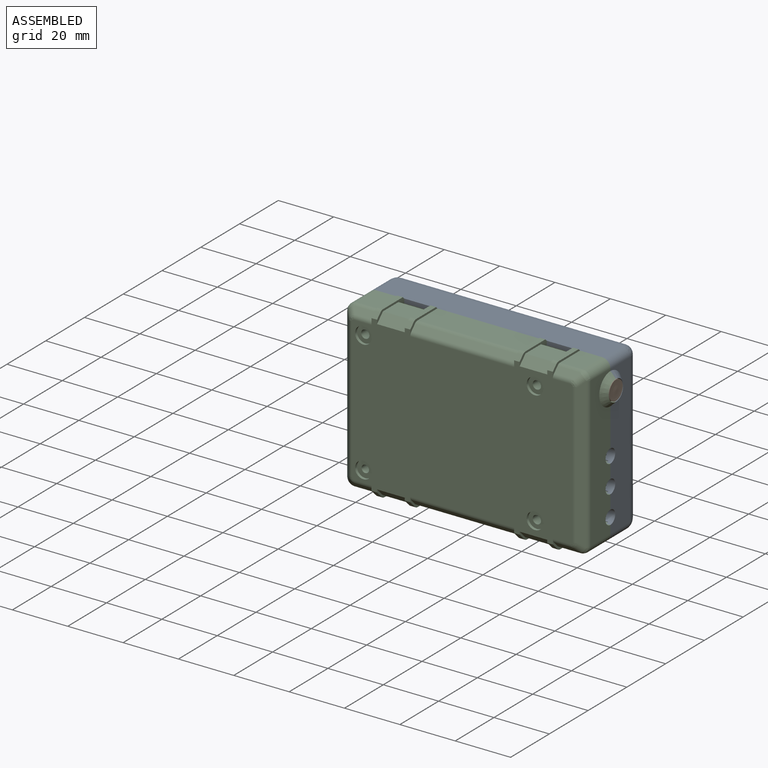
[diagram: assembled view]
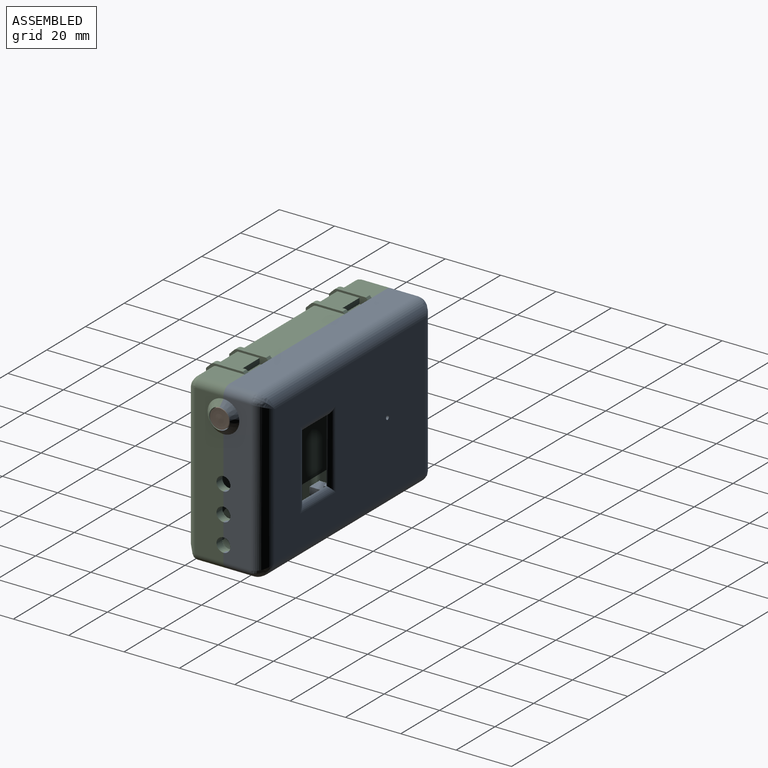
[diagram: assembled view, second angle]
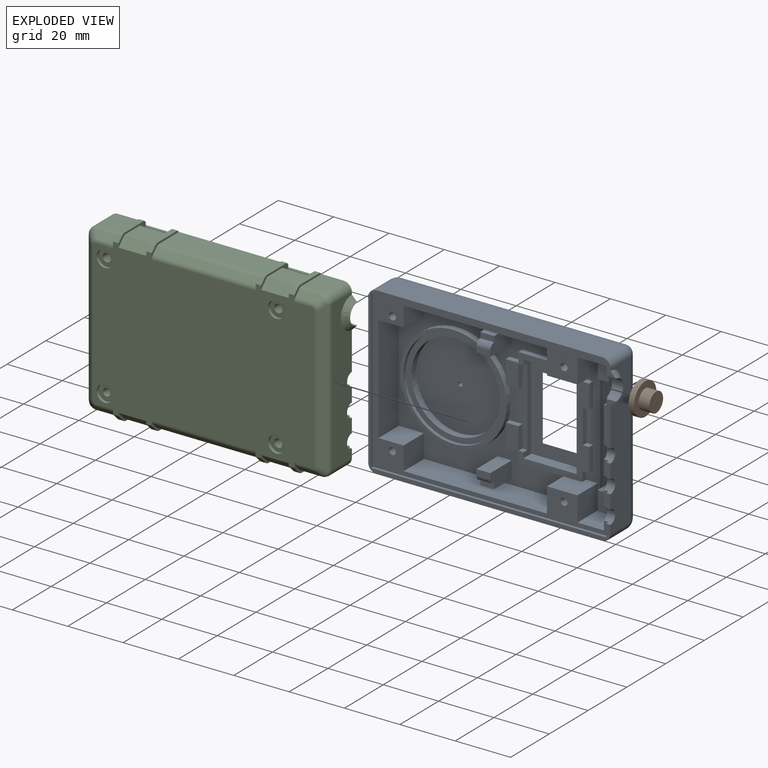
[diagram: exploded view]
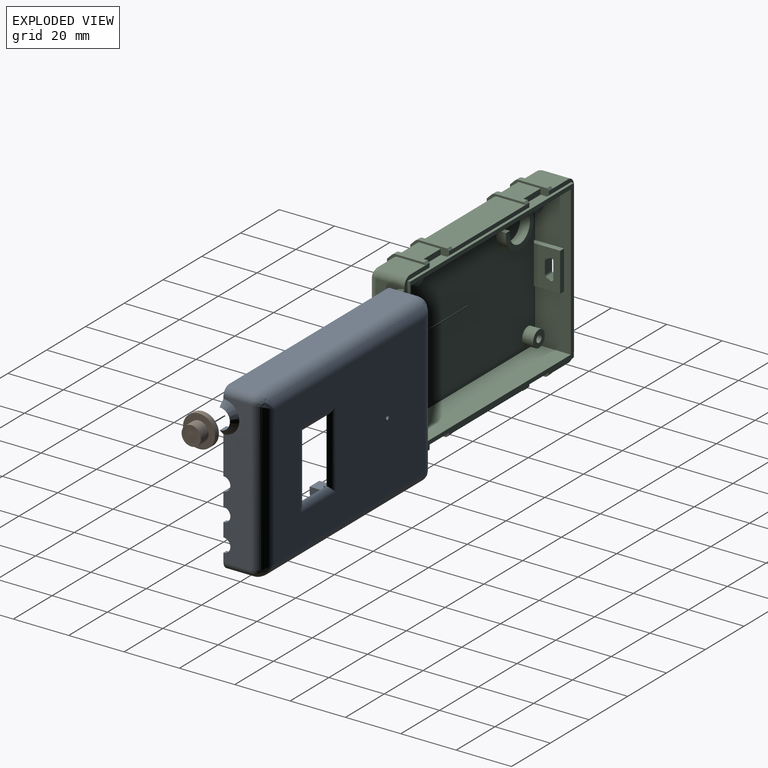
[diagram: exploded view, second angle]
ASSEMBLY  parts=3 mates=3
PART A: 141 faces, bbox 89.5x15x60 mm
  f0: cylinder r=0.75mm len=2mm, axis (0,-1,0), area 9.4mm2, adj f17,f140
  f1: plane 54x13.84mm, normal (0,-1,0), area 281.9mm2, adj f8,f9,f11,f12,f19,f20,f27,f30
  f2: plane 51.8x10.5mm, normal (0,0,1), area 543.9mm2, adj f6,f18,f29,f84
  f3: plane 51.8x10.5mm, normal (0,0,-1), area 543.9mm2, adj f6,f18,f28,f85
  f4: plane 9x5mm, normal (0,0,-1), area 45mm2, adj f6,f70,f71,f125
  f5: plane 9x5mm, normal (0,0,1), area 45mm2, adj f6,f74,f75,f124
  f6: plane 60.9x54mm, normal (0,-1,0), area 1306.7mm2, adj f2,f3,f4,f5,f7,f10,f14,f25
  f7: plane 8x2mm, normal (1,0,0), area 16mm2, adj f6,f90,f116,f134
  f8: plane 2.25x2mm, normal (0,0,-1), area 4.5mm2, adj f1,f89,f90,f130
  f9: plane 2.25x2mm, normal (0,0,1), area 4.5mm2, adj f1,f90,f92,f130
  f10: plane 38.5x10.5mm, normal (1,0,0), area 404.2mm2, adj f6,f18,f25,f26
  f11: plane 10.5x9.6mm, normal (0,0,1), area 100.8mm2, adj f1,f18,f34,f101
  f12: plane 10.5x9.6mm, normal (0,0,-1), area 100.8mm2, adj f1,f18,f34,f102
  f13: cylinder r=18mm len=36mm, axis (0,1,0), area 135.7mm2, adj f122,f123
  f14: cylinder r=19.25mm len=38.5mm, axis (0,1,0), area 266.1mm2, adj f6,f123
  f15: cylinder r=16mm len=32mm, axis (0,1,0), area 251.3mm2, adj f122,f140
  f16: plane 89.5x60mm, normal (0,-1,0), area 326.9mm2, adj f36,f37,f39,f52,f53,f56,f57,f61
  f17: plane 77.5x50mm, normal (0,1,0), area 3356.7mm2, adj f0,f108,f111,f112,f115,f118,f119,f120
  f18: plane 85x57mm, normal (0,-1,0), area 686.6mm2, adj f2,f3,f10,f11,f12,f19,f20,f25
  f19: plane 11x10.5mm, normal (0,0,-1), area 101.5mm2, adj f1,f18,f28,f90,f102,f131
  f20: plane 11x10.5mm, normal (0,0,1), area 102mm2, adj f1,f18,f29,f90,f101,f128
  f21: plane 5x2mm, normal (0,-1,0), area 10mm2, adj f72,f73,f74,f75
  f22: plane 5x2mm, normal (0,-1,0), area 10mm2, adj f68,f69,f70,f71
  f23: plane 32.22x20.2mm, normal (0,-1,0), area 349.4mm2, adj f24,f31,f86,f104,f118,f119,f120,f121
  f24: plane 20.2x4mm, normal (0,0,-1), area 78.3mm2, adj f23,f86,f87,f90,f103,f104
  f25: plane 10.5x9.1mm, normal (0,0,-1), area 95.6mm2, adj f6,f10,f18,f85
  f26: plane 10.5x9.1mm, normal (0,0,1), area 95.6mm2, adj f6,f10,f18,f84
  f27: plane 4x3.8mm, normal (0,0,-1), area 15.2mm2, adj f1,f46,f47,f48
  f28: plane 10.5x8.9mm, normal (-1,0,0), area 93.4mm2, adj f3,f6,f18,f19,f132
  f29: plane 10.5x8.9mm, normal (-1,0,0), area 93.4mm2, adj f2,f6,f18,f20,f127
  f30: plane 4x3.8mm, normal (0,0,1), area 15.2mm2, adj f1,f46,f50,f51
  f31: plane 20.2x4mm, normal (0,0,1), area 78.3mm2, adj f23,f86,f87,f90,f103,f104
  f32: plane 52x1.3mm, normal (1,0,0), area 67.6mm2, adj f1,f58,f138,f139
  f33: plane 16.09x1.5mm, normal (0,-1,0), area 21.4mm2, adj f34,f54,f60,f62,f66,f67
  f34: plane 54x10.5mm, normal (-1,0,0), area 431.2mm2, adj f1,f11,f12,f18,f33,f38,f44,f59
  f35: plane 15.75x3.5mm, normal (0,-1,0), area 25.6mm2, adj f37,f54,f60,f62,f63
  f36: plane 4.39x1mm, normal (-1,0,0), area 4.3mm2, adj f16,f18,f53,f62
  f37: plane 54x10mm, normal (1,0,0), area 458.6mm2, adj f16,f35,f42,f55,f59,f60,f61,f63
  f38: plane 5.42x1.5mm, normal (0,-1,0), area 8.1mm2, adj f34,f40,f59,f60
  f39: plane 4.71x1mm, normal (-1,0,0), area 4.6mm2, adj f16,f18,f52,f61
  f40: plane 5.42x1mm, normal (-1,0,0), area 5.1mm2, adj f38,f42,f59,f60
  f41: plane 5.42x1mm, normal (-1,0,0), area 5.1mm2, adj f44,f55,f59,f61
  f42: plane 5x1.5mm, normal (0,-1,0), area 7.5mm2, adj f37,f40,f59,f60
  f43: plane 50x4.8mm, normal (0,-1,0), area 187.6mm2, adj f45,f46,f47,f49,f50,f135,f136,f137
  f44: plane 5.42x1.5mm, normal (0,-1,0), area 8.1mm2, adj f34,f41,f59,f61
  f45: plane 4.5x3.8mm, normal (0,0,1), area 17.1mm2, adj f43,f46,f47,f48
  f46: plane 52x5.3mm, normal (-1,0,0), area 104.7mm2, adj f1,f27,f30,f43,f45,f48,f49,f51
  f47: plane 6.9x4.5mm, normal (1,0,0), area 31mm2, adj f27,f43,f45,f48,f137
  f48: plane 6.9x3.8mm, normal (0,-1,0), area 26.2mm2, adj f27,f45,f46,f47
  f49: plane 4.5x3.8mm, normal (0,0,-1), area 17.1mm2, adj f43,f46,f50,f51
  f50: plane 6.9x4.5mm, normal (1,0,0), area 31mm2, adj f30,f43,f49,f51,f136
  f51: plane 6.9x3.8mm, normal (0,-1,0), area 26.2mm2, adj f30,f46,f49,f50
  f52: plane 85x1mm, normal (0,0,1), area 85mm2, adj f16,f18,f39,f98
  f53: plane 85x1mm, normal (0,0,-1), area 85mm2, adj f16,f18,f36,f98
  f54: plane 16.09x1mm, normal (-1,0,0), area 15.9mm2, adj f33,f35,f60,f62
  f55: plane 5x1.5mm, normal (0,-1,0), area 7.5mm2, adj f37,f41,f59,f61
  f56: plane 81.5x10mm, normal (0,0,-1), area 815mm2, adj f16,f100,f106,f112
  f57: plane 81.5x10mm, normal (0,0,1), area 815mm2, adj f16,f99,f107,f111
  f58: plane 52x2mm, normal (0,-1,0), area 104mm2, adj f32,f46,f138,f139
  f59: cylinder r=2.5mm len=5mm, axis (1,0,0), area 20.5mm2, adj f34,f37,f38,f40,f41,f42,f44,f55
  f60: cylinder r=2.5mm len=5mm, axis (1,0,0), area 20.5mm2, adj f33,f34,f35,f37,f38,f40,f42,f54
  f61: cylinder r=2.5mm len=5mm, axis (1,0,0), area 20.5mm2, adj f16,f18,f34,f37,f39,f41,f44,f55
  f62: cylinder r=3.75mm len=7.5mm, axis (1,0,0), area 46.1mm2, adj f16,f18,f33,f35,f36,f54,f63,f67
  f63: cone r=3.75mm half-angle=45deg, axis (-1,0,0), area 42.2mm2, adj f16,f35,f37,f62
  f64: plane 9.5x1mm, normal (0,0,-1), area 9.5mm2, adj f18,f34,f65,f67
  f65: plane 12.73x1mm, normal (0,-1,0), area 12.7mm2, adj f34,f64,f66,f67
  f66: plane 9.5x1mm, normal (0,0,1), area 9.5mm2, adj f33,f34,f65,f67
  f67: plane 12.73x9.5mm, normal (-1,0,0), area 106.2mm2, adj f18,f33,f62,f64,f65,f66
  f68: cylinder r=2mm len=5mm, axis (-1,0,0), area 15.7mm2, adj f22,f70,f71,f125
  f69: plane 11x5mm, normal (0,0,1), area 55mm2, adj f6,f22,f70,f71
  f70: plane 11x6mm, normal (1,0,0), area 61.1mm2, adj f4,f6,f22,f68,f69,f125
  f71: plane 11x6mm, normal (-1,0,0), area 61.1mm2, adj f4,f6,f22,f68,f69,f125
  f72: cylinder r=2mm len=5mm, axis (1,0,0), area 15.7mm2, adj f21,f74,f75,f124
  f73: plane 11x5mm, normal (0,0,-1), area 55mm2, adj f6,f21,f74,f75
  f74: plane 11x6mm, normal (-1,0,0), area 61.1mm2, adj f5,f6,f21,f72,f73,f124
  f75: plane 11x6mm, normal (1,0,0), area 61.1mm2, adj f5,f6,f21,f72,f73,f124
  f76: plane 2.5x2.5mm, normal (0,-1,0), area 4.9mm2, adj f77
  f77: cylinder r=1.25mm len=11mm, axis (0,1,0), area 86.4mm2, adj f18,f76
  f78: plane 2.5x2.5mm, normal (0,-1,0), area 4.9mm2, adj f79
  f79: cylinder r=1.25mm len=11mm, axis (0,1,0), area 86.4mm2, adj f18,f78
  f80: plane 2.5x2.5mm, normal (0,-1,0), area 4.9mm2, adj f81
  f81: cylinder r=1.25mm len=11mm, axis (0,1,0), area 86.4mm2, adj f18,f80
  f82: plane 2.5x2.5mm, normal (0,-1,0), area 4.9mm2, adj f83
  f83: cylinder r=1.25mm len=11mm, axis (0,1,0), area 86.4mm2, adj f18,f82
  f84: plane 10.5x8.4mm, normal (1,0,0), area 88.2mm2, adj f2,f6,f18,f26
  f85: plane 10.5x7.1mm, normal (1,0,0), area 74.5mm2, adj f3,f6,f18,f25
  f86: plane 32.22x4mm, normal (1,0,0), area 72.4mm2, adj f6,f23,f24,f31,f90,f129,f134
  f87: plane 32.22x2.5mm, normal (-1,0,0), area 80.5mm2, adj f24,f31,f90,f103
  f88: plane 2.27x2mm, normal (0,0,1), area 4.5mm2, adj f1,f89,f90,f131
  f89: plane 8.5x2mm, normal (1,0,0), area 17mm2, adj f1,f8,f88,f90
  f90: plane 36.31x30.11mm, normal (0,-1,0), area 288.7mm2, adj f7,f8,f9,f19,f20,f24,f31,f86
  f91: plane 2.48x2mm, normal (0,0,-1), area 5mm2, adj f1,f90,f92,f128
  f92: plane 8.5x2mm, normal (1,0,0), area 17mm2, adj f1,f9,f90,f91
  f93: plane 4.61x2mm, normal (0,0,1), area 9.2mm2, adj f6,f90,f94,f133
  f94: plane 8.5x2mm, normal (-1,0,0), area 17mm2, adj f6,f90,f93,f116
  f95: plane 4.61x2mm, normal (0,0,-1), area 9.2mm2, adj f6,f90,f97,f126
  f96: plane 8x2mm, normal (1,0,0), area 16mm2, adj f6,f90,f117,f129
  f97: plane 8.5x2mm, normal (-1,0,0), area 17mm2, adj f6,f90,f95,f117
  f98: plane 57x1mm, normal (1,0,0), area 57mm2, adj f16,f18,f52,f53
  f99: cylinder r=3mm len=10mm, axis (0,1,0), area 47.1mm2, adj f16,f37,f57,f113
  f100: cylinder r=3mm len=10mm, axis (0,-1,0), area 47.1mm2, adj f16,f37,f56,f114
  f101: plane 10.5x8.9mm, normal (1,0,0), area 93.4mm2, adj f1,f11,f18,f20
  f102: plane 10.5x8.9mm, normal (1,0,0), area 93.4mm2, adj f1,f12,f18,f19
  f103: plane 32.22x1mm, normal (0,1,0), area 32.2mm2, adj f24,f31,f87,f104
  f104: plane 32.22x1.5mm, normal (-1,0,0), area 48.3mm2, adj f23,f24,f31,f103
  f105: plane 54x10mm, normal (-1,0,0), area 540mm2, adj f16,f106,f107,f108
  f106: cylinder r=3mm len=10mm, axis (0,1,0), area 47.1mm2, adj f16,f56,f105,f110
  f107: cylinder r=3mm len=10mm, axis (0,-1,0), area 47.1mm2, adj f16,f57,f105,f109
  f108: cylinder r=5mm len=54mm, axis (0,0,-1), area 412.7mm2, adj f17,f105,f109,f110
  f109: bspline ~6.03x5mm, area 24.5mm2, adj f107,f108,f111
  f110: bspline ~6.03x5mm, area 24.5mm2, adj f106,f108,f112
  f111: cylinder r=5mm len=81.5mm, axis (-1,0,0), area 628.7mm2, adj f17,f57,f109,f113
  f112: cylinder r=5mm len=81.5mm, axis (1,0,0), area 628.7mm2, adj f17,f56,f110,f114
  f113: bspline ~6.03x5mm, area 24.5mm2, adj f99,f111,f115
  f114: bspline ~6.03x5mm, area 24.5mm2, adj f100,f112,f115
  f115: cylinder r=5mm len=54mm, axis (0,0,1), area 412.7mm2, adj f17,f37,f113,f114
  f116: plane 4.61x2mm, normal (0,0,-1), area 9.2mm2, adj f6,f7,f90,f94
  f117: plane 4.61x2mm, normal (0,0,1), area 9.2mm2, adj f6,f90,f96,f97
  f118: cylinder r=3mm len=28.29mm, axis (0,0,-1), area 79.9mm2, adj f17,f23,f119,f120
  f119: cylinder r=3mm len=18.25mm, axis (-1,0,0), area 48.3mm2, adj f17,f23,f118,f121
  f120: cylinder r=3mm len=18.25mm, axis (1,0,0), area 48.3mm2, adj f17,f23,f118,f121
  f121: cylinder r=3mm len=28.29mm, axis (0,0,1), area 79.9mm2, adj f17,f23,f119,f120
  f122: plane 36x36mm, normal (0,-1,0), area 213.6mm2, adj f13,f15
  f123: plane 38.5x38.5mm, normal (0,-1,0), area 146.3mm2, adj f13,f14
  f124: plane 5x2mm, normal (0,-1,0), area 10mm2, adj f5,f72,f74,f75
  f125: plane 5x2mm, normal (0,-1,0), area 10mm2, adj f4,f68,f70,f71
  f126: plane 3.53x2mm, normal (-1,0,0), area 7.1mm2, adj f6,f90,f95,f127
  f127: plane 16.25x2mm, normal (0,0,-1), area 32.5mm2, adj f6,f29,f90,f126
  f128: plane 3.53x2mm, normal (1,0,0), area 7.1mm2, adj f1,f20,f90,f91
  f129: plane 2x1.8mm, normal (0,0,1), area 3.6mm2, adj f6,f86,f90,f96
  f130: plane 12.22x2mm, normal (1,0,0), area 24.4mm2, adj f1,f8,f9,f90
  f131: plane 3.44x2mm, normal (1,0,-0.01), area 6.9mm2, adj f1,f19,f88,f90
  f132: plane 16.25x2mm, normal (0.01,0,1), area 32.5mm2, adj f6,f28,f90,f133
  f133: plane 3.55x2mm, normal (-1,0,0), area 7.1mm2, adj f6,f90,f93,f132
  f134: plane 2x1.8mm, normal (0,0,-1), area 3.6mm2, adj f6,f7,f86,f90
  f135: plane 50x0.5mm, normal (-1,0,0), area 25mm2, adj f1,f43,f136,f137
  f136: plane 1x0.5mm, normal (0,0,-1), area 0.5mm2, adj f1,f43,f50,f135
  f137: plane 1x0.5mm, normal (0,0,1), area 0.5mm2, adj f1,f43,f47,f135
  f138: plane 2x1.3mm, normal (0,0,1), area 2.6mm2, adj f1,f32,f46,f58
  f139: plane 2x1.3mm, normal (0,0,-1), area 2.6mm2, adj f1,f32,f46,f58
  f140: plane 32x32mm, normal (0,-1,0), area 802.5mm2, adj f0,f15
PART B: 7 faces, bbox 11.6x11.6x6 mm
  f0: plane 4x4mm, normal (0,0,-1), area 12.6mm2, adj f6
  f1: torus R=1.75mm, axis (0,0,1), area 38.5mm2, adj f2
  f2: cylinder r=3.5mm len=7mm, axis (0,0,1), area 88mm2, adj f1,f3
  f3: plane 11.6x11.6mm, normal (0,0,1), area 67.2mm2, adj f2,f4
  f4: cylinder r=5.8mm len=11.6mm, axis (0,0,1), area 72.9mm2, adj f3,f5
  f5: plane 11.6x11.6mm, normal (0,0,-1), area 93.1mm2, adj f4,f6
  f6: cylinder r=2mm len=4mm, axis (0,0,1), area 50.3mm2, adj f0,f5
PART C: 234 faces, bbox 89.5x15x61.7 mm
  f0: cylinder r=0.8mm len=3.7mm, axis (1,0,0), area 6mm2, adj f1,f8,f9,f233
  f1: plane 3.7x2.97mm, normal (0,1,-0.01), area 11mm2, adj f0,f2,f9,f233
  f2: plane 3.7x2.96mm, normal (0,1,0), area 10.9mm2, adj f1,f3,f9,f233
  f3: cylinder r=0.8mm len=3.7mm, axis (1,0,0), area 6.1mm2, adj f2,f4,f9,f233
  f4: plane 3.7x1.37mm, normal (0,-0.45,0.89), area 5.7mm2, adj f3,f5,f9,f233
  f5: cylinder r=0.81mm len=3.7mm, axis (1,0,0), area 3.3mm2, adj f4,f6,f9,f233
  f6: plane 4.51x3.7mm, normal (0,-1,0), area 16.7mm2, adj f5,f7,f9,f233
  f7: cylinder r=0.83mm len=3.7mm, axis (1,0,0), area 3.2mm2, adj f6,f8,f9,f233
  f8: plane 3.7x1.37mm, normal (0,-0.46,-0.89), area 5.7mm2, adj f0,f7,f9,f233
  f9: plane 14x9.5mm, normal (1,0,0), area 112.9mm2, adj f0,f1,f2,f3,f4,f5,f6,f7
  f10: plane 70.7x50mm, normal (0,-1,0), area 3334.4mm2, adj f9,f34,f61,f68,f72,f77,f82,f139
  f11: plane 14x2mm, normal (0,-1,0), area 28mm2, adj f9,f13,f14,f225
  f12: plane 5.01x2.01mm, normal (0,0,1), area 10mm2, adj f9,f14,f226,f227,f228
  f13: plane 4.01x2.01mm, normal (0,0,1), area 8mm2, adj f9,f11,f14,f228
  f14: plane 54x13mm, normal (1,0,0), area 555mm2, adj f11,f12,f13,f22,f55,f56,f225,f227
  f15: plane 5.5x4.8mm, normal (0,0,1), area 21.9mm2, adj f17,f76,f78,f79,f223,f227
  f16: plane 5.5x4.8mm, normal (0,0,-1), area 21.9mm2, adj f17,f78,f80,f83,f223,f227
  f17: plane 50x4.8mm, normal (0,-1,0), area 202mm2, adj f15,f16,f75,f76,f78,f80,f81,f223
  f18: plane 54x13mm, normal (-1,0,0), area 534mm2, adj f19,f22,f55,f56,f84,f85,f86,f151
  f19: plane 15.75x1.5mm, normal (0,-1,0), area 20.9mm2, adj f18,f23,f153,f154,f220,f222
  f20: cylinder r=3.75mm len=7.5mm, axis (1,0,0), area 47.1mm2, adj f21,f23,f27,f31,f219,f222
  f21: plane 1x0.5mm, normal (0,0,1), area 0.5mm2, adj f20,f22,f150,f222
  f22: plane 84.5x57mm, normal (0,-1,0), area 340.4mm2, adj f14,f18,f21,f55,f56,f146,f147,f148
  f23: plane 1x0.5mm, normal (0,0,-1), area 0.5mm2, adj f19,f20,f154,f222
  f24: plane 54x10.17mm, normal (1,0,0), area 467.9mm2, adj f27,f29,f30,f31,f32,f84,f85,f86
  f25: plane 10x8mm, normal (0,0,-1), area 80mm2, adj f40,f125,f132,f213
  f26: plane 10x8mm, normal (0,0,-1), area 80mm2, adj f41,f117,f120,f211
  f27: plane 15x5.75mm, normal (0,-1,0), area 25.9mm2, adj f20,f24,f59,f93,f116,f117,f149,f150
  f28: plane 41.5x1.5mm, normal (0,-1,0), area 62.2mm2, adj f38,f120,f121,f131,f132,f149
  f29: plane 5x1.5mm, normal (0,-1,0), area 7.5mm2, adj f24,f84,f85,f160
  f30: plane 5x1.5mm, normal (0,-1,0), area 7.5mm2, adj f24,f85,f86,f157
  f31: plane 15.75x3.5mm, normal (0,-1,0), area 25.6mm2, adj f20,f24,f86,f154,f219
  f32: plane 13x7mm, normal (0,-1,0), area 26.3mm2, adj f24,f57,f84,f97,f99,f100,f101,f146
  f33: plane 60x13mm, normal (0,-1,0), area 120.6mm2, adj f42,f45,f58,f91,f95,f108,f125,f126
  f34: cylinder r=3mm len=6mm, axis (0,1,0), area 74.8mm2, adj f10,f65,f139,f143,f144
  f35: plane 10x8mm, normal (0,0,1), area 80mm2, adj f44,f108,f111,f137
  f36: plane 10x8mm, normal (0,0,1), area 80mm2, adj f49,f100,f103,f135
  f37: plane 41.5x1.5mm, normal (0,-1,0), area 62.2mm2, adj f47,f103,f111,f147,f216,f217
  f38: plane 37.5x10.17mm, normal (0,0,-1), area 381.4mm2, adj f28,f122,f130,f191
  f39: plane 37.5x1.83mm, normal (0,0.71,-0.71), area 97mm2, adj f122,f130,f191,f192
  f40: plane 10x3mm, normal (0,0.71,-0.71), area 42.4mm2, adj f25,f54,f125,f132
  f41: plane 10x3mm, normal (0,0.71,-0.71), area 42.4mm2, adj f26,f54,f117,f120
  f42: plane 10.17x8mm, normal (0,0,-1), area 81.4mm2, adj f33,f91,f127,f172
  f43: plane 8.26x1.83mm, normal (0,0.71,-0.71), area 19.1mm2, adj f92,f127,f172,f173,f186
  f44: plane 10x3mm, normal (0,0.71,0.71), area 42.4mm2, adj f35,f54,f108,f111
  f45: plane 10.17x8mm, normal (0,0,1), area 81.4mm2, adj f33,f95,f107,f180
  f46: plane 8.26x1.83mm, normal (0,0.71,0.71), area 19.1mm2, adj f96,f107,f179,f180,f190
  f47: plane 37.5x10.17mm, normal (0,0,1), area 381.4mm2, adj f37,f104,f112,f198
  f48: plane 37.5x1.83mm, normal (0,0.71,0.71), area 97mm2, adj f104,f112,f197,f198
  f49: plane 10x3mm, normal (0,0.71,0.71), area 42.4mm2, adj f36,f54,f100,f103
  f50: cylinder r=3mm len=6mm, axis (0,1,0), area 18.8mm2, adj f54,f74
  f51: cylinder r=3mm len=6mm, axis (0,1,0), area 18.8mm2, adj f54,f70
  f52: cylinder r=3mm len=6mm, axis (0,1,0), area 18.8mm2, adj f54,f66
  f53: cylinder r=3mm len=6mm, axis (0,1,0), area 18.8mm2, adj f54,f63
  f54: plane 79.84x56.41mm, normal (0,1,0), area 4131.5mm2, adj f40,f41,f44,f49,f50,f51,f52,f53
  f55: plane 81.5x13mm, normal (0,0,-1), area 1059.5mm2, adj f14,f18,f22,f227
  f56: plane 82.5x13mm, normal (0,0,1), area 1069mm2, adj f14,f18,f22,f221,f222,f227
  f57: plane 10.17x8mm, normal (0,0,1), area 81.4mm2, adj f32,f97,f99,f171
  f58: plane 54x10.17mm, normal (-1,0,0), area 479.4mm2, adj f33,f91,f95,f176,f229,f230,f231,f232
  f59: plane 10.17x8mm, normal (0,0,-1), area 81.4mm2, adj f27,f93,f115,f163
  f60: cylinder r=1.35mm len=6mm, axis (0,1,0), area 50.9mm2, adj f62,f63
  f61: cylinder r=3mm len=6mm, axis (0,1,0), area 75.4mm2, adj f10,f62
  f62: plane 6x6mm, normal (0,-1,0), area 22.5mm2, adj f60,f61
  f63: plane 6x6mm, normal (0,1,0), area 22.5mm2, adj f53,f60
  f64: cylinder r=1.5mm len=6mm, axis (0,1,0), area 56.5mm2, adj f65,f66
  f65: plane 6x6mm, normal (0,-1,0), area 21.2mm2, adj f34,f64
  f66: plane 6x6mm, normal (0,1,0), area 21.2mm2, adj f52,f64
  f67: cylinder r=1.5mm len=6mm, axis (0,1,0), area 56.5mm2, adj f69,f70
  f68: cylinder r=3mm len=6mm, axis (0,1,0), area 75.4mm2, adj f10,f69
  f69: plane 6x6mm, normal (0,-1,0), area 21.2mm2, adj f67,f68
  f70: plane 6x6mm, normal (0,1,0), area 21.2mm2, adj f51,f67
  f71: cylinder r=1.5mm len=6mm, axis (0,1,0), area 56.5mm2, adj f73,f74
  f72: cylinder r=3mm len=6mm, axis (0,1,0), area 75.4mm2, adj f10,f73
  f73: plane 6x6mm, normal (0,-1,0), area 21.2mm2, adj f71,f72
  f74: plane 6x6mm, normal (0,1,0), area 21.2mm2, adj f50,f71
  f75: plane 4.5x3.8mm, normal (0,0,-1), area 17.1mm2, adj f17,f76,f78,f79
  f76: plane 5x4.5mm, normal (1,0,0), area 22.5mm2, adj f15,f17,f75,f79
  f77: plane 70.7x5mm, normal (0,0,1), area 78.3mm2, adj f10,f204,f205,f206,f226,f227
  f78: plane 50x5.5mm, normal (-1,0,0), area 95mm2, adj f15,f16,f17,f75,f79,f81,f83,f227
  f79: plane 5x3.8mm, normal (0,-1,0), area 19mm2, adj f15,f75,f76,f78
  f80: plane 5x4.5mm, normal (1,0,0), area 22.5mm2, adj f16,f17,f81,f83
  f81: plane 4.5x3.8mm, normal (0,0,1), area 17.1mm2, adj f17,f78,f80,f83
  f82: plane 70.7x5mm, normal (0,0,-1), area 78.3mm2, adj f10,f204,f208,f209,f224,f227
  f83: plane 5x3.8mm, normal (0,-1,0), area 19mm2, adj f16,f78,f80,f81
  f84: cylinder r=2.5mm len=5mm, axis (1,0,0), area 23.6mm2, adj f18,f24,f29,f32,f151,f161
  f85: cylinder r=2.5mm len=5mm, axis (1,0,0), area 23.6mm2, adj f18,f24,f29,f30,f155,f159
  f86: cylinder r=2.5mm len=5mm, axis (1,0,0), area 23.6mm2, adj f18,f24,f30,f31,f153,f156
  f87: plane 8.26x1.83mm, normal (0,0.71,-0.71), area 19.1mm2, adj f94,f115,f163,f164,f181
  f88: plane 54.52x1.83mm, normal (-0.71,0.71,0), area 136.4mm2, adj f92,f96,f175,f176,f177,f188
  f89: plane 54.52x1.83mm, normal (0.71,0.71,0), area 136.4mm2, adj f94,f98,f166,f167,f168,f183
  f90: plane 8.26x1.83mm, normal (0,0.71,0.71), area 19.1mm2, adj f98,f99,f170,f171,f185
  f91: cylinder r=3mm len=10.21mm, axis (0,1,0), area 48.1mm2, adj f33,f42,f58,f173,f174,f175
  f92: cylinder r=3mm len=3.92mm, axis (-0.58,-0.58,-0.58), area 9.8mm2, adj f43,f88,f174,f187
  f93: cylinder r=3mm len=10.21mm, axis (0,-1,0), area 48.1mm2, adj f24,f27,f59,f164,f165,f166
  f94: cylinder r=3mm len=3.92mm, axis (0.58,-0.58,-0.58), area 9.8mm2, adj f87,f89,f165,f182
  f95: cylinder r=3mm len=10.21mm, axis (0,-1,0), area 48.1mm2, adj f33,f45,f58,f177,f178,f179
  f96: cylinder r=3mm len=3.92mm, axis (0.58,0.58,-0.58), area 9.8mm2, adj f46,f88,f178,f189
  f97: cylinder r=3mm len=10.21mm, axis (0,1,0), area 48.1mm2, adj f24,f32,f57,f168,f169,f170
  f98: cylinder r=3mm len=3.92mm, axis (-0.58,0.58,-0.58), area 9.8mm2, adj f89,f90,f169,f184
  f99: plane 14x4.83mm, normal (1,0,0), area 14.1mm2, adj f32,f54,f57,f90,f101,f102,f171,f185
  f100: plane 14x4mm, normal (-1,0,0), area 19.9mm2, adj f32,f36,f49,f54,f101,f102,f135,f136
  f101: plane 10.17x2mm, normal (0,0,1), area 20.3mm2, adj f32,f99,f100,f202
  f102: plane 2.41x2.41mm, normal (0,0.71,0.71), area 6.8mm2, adj f54,f99,f100,f202
  f103: plane 14x4mm, normal (1,0,0), area 19.4mm2, adj f36,f37,f49,f54,f105,f106,f135,f136
  f104: plane 14x4.83mm, normal (-1,0,0), area 13.6mm2, adj f47,f48,f54,f105,f106,f197,f198,f201
  f105: plane 9.17x2mm, normal (0,0,1), area 18.3mm2, adj f103,f104,f201,f216
  f106: plane 2.41x2.41mm, normal (0,0.71,0.71), area 6.8mm2, adj f54,f103,f104,f201
  f107: plane 14x4.83mm, normal (-1,0,0), area 13.6mm2, adj f45,f46,f54,f109,f110,f180,f190,f199
  f108: plane 14x4mm, normal (1,0,0), area 19.4mm2, adj f33,f35,f44,f54,f109,f110,f137,f138
  f109: plane 9.17x2mm, normal (0,0,1), area 18.3mm2, adj f107,f108,f199,f218
  f110: plane 2.41x2.41mm, normal (0,0.71,0.71), area 6.8mm2, adj f54,f107,f108,f199
  f111: plane 14x4mm, normal (-1,0,0), area 19.4mm2, adj f35,f37,f44,f54,f113,f114,f137,f138
  f112: plane 14x4.83mm, normal (1,0,0), area 13.6mm2, adj f47,f48,f54,f113,f114,f197,f198,f200
  f113: plane 9.17x2mm, normal (0,0,1), area 18.3mm2, adj f111,f112,f200,f217
  f114: plane 2.41x2.41mm, normal (0,0.71,0.71), area 6.8mm2, adj f54,f111,f112,f200
  f115: plane 14x4.54mm, normal (1,0,0), area 11.6mm2, adj f54,f59,f87,f116,f118,f119,f163,f181
  f116: plane 2x0.71mm, normal (0,-0.71,-0.71), area 2mm2, adj f27,f115,f117,f118
  f117: plane 14x3.71mm, normal (-1,0,0), area 17.4mm2, adj f26,f27,f41,f54,f116,f118,f119,f196
  f118: plane 10.17x2mm, normal (0,0,-1), area 20.3mm2, adj f115,f116,f117,f196
  f119: plane 2x1.71mm, normal (0,0.71,-0.71), area 4.8mm2, adj f54,f115,f117,f196
  f120: plane 14x3.71mm, normal (1,0,0), area 17.4mm2, adj f26,f28,f41,f54,f121,f123,f124,f193
  f121: plane 2x0.71mm, normal (0,-0.71,-0.71), area 2mm2, adj f28,f120,f122,f123
  f122: plane 14x4.54mm, normal (-1,0,0), area 11.6mm2, adj f38,f39,f54,f121,f123,f124,f191,f192
  f123: plane 10.17x2mm, normal (0,0,-1), area 20.3mm2, adj f120,f121,f122,f193
  f124: plane 2x1.71mm, normal (0,0.71,-0.71), area 4.8mm2, adj f54,f120,f122,f193
  f125: plane 14x3.71mm, normal (1,0,0), area 17.4mm2, adj f25,f33,f40,f54,f126,f128,f129,f194
  f126: plane 2x0.71mm, normal (0,-0.71,-0.71), area 2mm2, adj f33,f125,f127,f128
  f127: plane 14x4.54mm, normal (-1,0,0), area 11.6mm2, adj f42,f43,f54,f126,f128,f129,f172,f186
  f128: plane 10.17x2mm, normal (0,0,-1), area 20.3mm2, adj f125,f126,f127,f194
  f129: plane 2x1.71mm, normal (0,0.71,-0.71), area 4.8mm2, adj f54,f125,f127,f194
  f130: plane 14x4.54mm, normal (1,0,0), area 11.6mm2, adj f38,f39,f54,f131,f133,f134,f191,f192
  f131: plane 2x0.71mm, normal (0,-0.71,-0.71), area 2mm2, adj f28,f130,f132,f133
  f132: plane 14x3.71mm, normal (-1,0,0), area 17.4mm2, adj f25,f28,f40,f54,f131,f133,f134,f195
  f133: plane 10.17x2mm, normal (0,0,-1), area 20.3mm2, adj f130,f131,f132,f195
  f134: plane 2x1.71mm, normal (0,0.71,-0.71), area 4.8mm2, adj f54,f130,f132,f195
  f135: plane 10x2mm, normal (0,-1,0), area 20mm2, adj f36,f100,f103,f136
  f136: plane 10x3mm, normal (0,0,1), area 30mm2, adj f100,f103,f135,f145
  f137: plane 10x2mm, normal (0,-1,0), area 20mm2, adj f35,f108,f111,f138
  f138: plane 10x3mm, normal (0,0,1), area 30mm2, adj f108,f111,f137,f152
  f139: cylinder r=7.2mm len=11.72mm, axis (0,1,0), area 48.7mm2, adj f10,f34,f140,f144
  f140: plane 3.5x1.85mm, normal (0.45,0,0.89), area 7.2mm2, adj f10,f139,f141,f144
  f141: cylinder r=5.25mm len=10.5mm, axis (0,1,0), area 103.1mm2, adj f10,f140,f142,f144
  f142: plane 3.5x1.98mm, normal (0,0,-1), area 6.9mm2, adj f10,f141,f143,f144
  f143: cylinder r=7.2mm len=14.4mm, axis (0,1,0), area 93.5mm2, adj f10,f34,f142,f144
  f144: plane 14.4x14.4mm, normal (0,-1,0), area 68.5mm2, adj f34,f139,f140,f141,f142,f143
  f145: plane 10x0.5mm, normal (0,1,0), area 5mm2, adj f100,f103,f136,f147
  f146: plane 4.5x1mm, normal (1,0,0), area 4.5mm2, adj f22,f32,f147,f151
  f147: plane 84.5x1mm, normal (0,0,1), area 84.5mm2, adj f22,f32,f33,f37,f145,f146,f148,f152
  f148: plane 57x1mm, normal (-1,0,0), area 57mm2, adj f22,f33,f147,f149
  f149: plane 84.5x1mm, normal (0,0,-1), area 84.5mm2, adj f22,f27,f28,f33,f148,f150,f210,f214
  f150: plane 4.25x1mm, normal (1,0,0), area 4.2mm2, adj f21,f22,f27,f149
  f151: plane 1.5x1mm, normal (0,0,-1), area 1.5mm2, adj f18,f22,f84,f146
  f152: plane 10x0.5mm, normal (0,1,0), area 5mm2, adj f108,f111,f138,f147
  f153: plane 1.5x1mm, normal (0,0,1), area 1.5mm2, adj f18,f19,f86,f154
  f154: plane 15.75x1mm, normal (1,0,0), area 15.7mm2, adj f19,f23,f31,f153
  f155: plane 1.5x1mm, normal (0,0,1), area 1.5mm2, adj f18,f85,f157,f158
  f156: plane 1.5x1mm, normal (0,0,-1), area 1.5mm2, adj f18,f86,f157,f158
  f157: plane 5x1mm, normal (1,0,0), area 5mm2, adj f30,f155,f156,f158
  f158: plane 5x1.5mm, normal (0,-1,0), area 7.5mm2, adj f18,f155,f156,f157
  f159: plane 1.5x1mm, normal (0,0,-1), area 1.5mm2, adj f18,f85,f160,f162
  f160: plane 5x1mm, normal (1,0,0), area 5mm2, adj f29,f159,f161,f162
  f161: plane 1.5x1mm, normal (0,0,1), area 1.5mm2, adj f18,f84,f160,f162
  f162: plane 5x1.5mm, normal (0,-1,0), area 7.5mm2, adj f18,f159,f160,f161
  f163: cylinder r=2mm len=8mm, axis (1,0,0), area 12.6mm2, adj f59,f87,f115,f164
  f164: bspline ~1.46x0.9mm, area 0.9mm2, adj f87,f93,f163,f165
  f165: bspline ~3x3mm, area 6mm2, adj f93,f94,f164,f166
  f166: bspline ~1.46x0.9mm, area 0.9mm2, adj f89,f93,f165,f167
  f167: cylinder r=2mm len=54mm, axis (0,0,1), area 84.8mm2, adj f24,f89,f166,f168
  f168: bspline ~1.46x1.03mm, area 0.9mm2, adj f89,f97,f167,f169
  f169: bspline ~3x3mm, area 6mm2, adj f97,f98,f168,f170
  f170: bspline ~1.46x1.42mm, area 0.9mm2, adj f90,f97,f169,f171
  f171: cylinder r=2mm len=8mm, axis (-1,0,0), area 12.6mm2, adj f57,f90,f99,f170
  f172: cylinder r=2mm len=8mm, axis (1,0,0), area 12.6mm2, adj f42,f43,f127,f173
  f173: bspline ~1.46x1.03mm, area 0.9mm2, adj f43,f91,f172,f174
  f174: bspline ~3x3mm, area 6mm2, adj f91,f92,f173,f175
  f175: bspline ~1.46x1.42mm, area 0.9mm2, adj f88,f91,f174,f176
  f176: cylinder r=2mm len=54mm, axis (0,0,-1), area 84.8mm2, adj f58,f88,f175,f177
  f177: bspline ~1.46x0.9mm, area 0.9mm2, adj f88,f95,f176,f178
  f178: bspline ~3x3mm, area 6mm2, adj f95,f96,f177,f179
  f179: bspline ~1.46x0.9mm, area 0.9mm2, adj f46,f95,f178,f180
  f180: cylinder r=2mm len=8mm, axis (-1,0,0), area 12.6mm2, adj f45,f46,f107,f179
  f181: cylinder r=2mm len=6.46mm, axis (-1,0,0), area 10.2mm2, adj f54,f87,f115,f182
  f182: bspline ~2.12x2.12mm, area 2.9mm2, adj f54,f94,f181,f183
  f183: cylinder r=2mm len=50.93mm, axis (0,0,1), area 80mm2, adj f54,f89,f182,f184
  f184: bspline ~2.12x2.12mm, area 2.9mm2, adj f54,f98,f183,f185
  f185: cylinder r=2mm len=6.46mm, axis (-1,0,0), area 10.2mm2, adj f54,f90,f99,f184
  f186: cylinder r=2mm len=6.46mm, axis (-1,0,0), area 10.2mm2, adj f43,f54,f127,f187
  f187: bspline ~2.12x2.12mm, area 2.9mm2, adj f54,f92,f186,f188
  f188: cylinder r=2mm len=50.93mm, axis (0,0,1), area 80mm2, adj f54,f88,f187,f189
  f189: bspline ~2.12x2.12mm, area 2.9mm2, adj f54,f96,f188,f190
  f190: cylinder r=2mm len=6.46mm, axis (-1,0,0), area 10.2mm2, adj f46,f54,f107,f189
  f191: cylinder r=2mm len=37.5mm, axis (1,0,0), area 58.9mm2, adj f38,f39,f122,f130
  f192: cylinder r=2mm len=37.5mm, axis (-1,0,0), area 58.9mm2, adj f39,f54,f122,f130
  f193: cylinder r=2mm len=2mm, axis (1,0,0), area 3.1mm2, adj f120,f122,f123,f124
  f194: cylinder r=2mm len=2mm, axis (1,0,0), area 3.1mm2, adj f125,f127,f128,f129
  f195: cylinder r=2mm len=2mm, axis (1,0,0), area 3.1mm2, adj f130,f132,f133,f134
  f196: cylinder r=2mm len=2mm, axis (1,0,0), area 3.1mm2, adj f115,f117,f118,f119
  f197: cylinder r=2mm len=37.5mm, axis (-1,0,0), area 58.9mm2, adj f48,f54,f104,f112
  f198: cylinder r=2mm len=37.5mm, axis (-1,0,0), area 58.9mm2, adj f47,f48,f104,f112
  f199: cylinder r=2mm len=2mm, axis (-1,0,0), area 3.1mm2, adj f107,f108,f109,f110
  f200: cylinder r=2mm len=2mm, axis (-1,0,0), area 3.1mm2, adj f111,f112,f113,f114
  f201: cylinder r=2mm len=2mm, axis (-1,0,0), area 3.1mm2, adj f103,f104,f105,f106
  f202: cylinder r=2mm len=2mm, axis (-1,0,0), area 3.1mm2, adj f99,f100,f101,f102
  f203: plane 4x1.9mm, normal (0,0,-1), area 7.6mm2, adj f10,f204,f205,f206
  f204: plane 50x5mm, normal (1,0,0), area 90mm2, adj f10,f77,f82,f203,f206,f207,f209,f227
  f205: plane 5x4mm, normal (-1,0,0), area 20mm2, adj f10,f77,f203,f206
  f206: plane 5x1.9mm, normal (0,-1,0), area 9.5mm2, adj f77,f203,f204,f205
  f207: plane 4x1.9mm, normal (0,0,1), area 7.6mm2, adj f10,f204,f208,f209
  f208: plane 5x4mm, normal (-1,0,0), area 20mm2, adj f10,f82,f207,f209
  f209: plane 5x1.9mm, normal (0,-1,0), area 9.5mm2, adj f82,f204,f207,f208
  f210: plane 10x0.5mm, normal (0,1,0), area 5mm2, adj f117,f120,f149,f212
  f211: plane 10x2mm, normal (0,-1,0), area 20mm2, adj f26,f117,f120,f212
  f212: plane 10x3mm, normal (0,0,-1), area 30mm2, adj f117,f120,f210,f211
  f213: plane 10x2mm, normal (0,-1,0), area 20mm2, adj f25,f125,f132,f215
  f214: plane 10x0.5mm, normal (0,1,0), area 5mm2, adj f125,f132,f149,f215
  f215: plane 10x3mm, normal (0,0,-1), area 30mm2, adj f125,f132,f213,f214
  f216: plane 2x1mm, normal (0,-0.71,0.71), area 2.8mm2, adj f37,f103,f104,f105
  f217: plane 2x1mm, normal (0,-0.71,0.71), area 2.8mm2, adj f37,f111,f112,f113
  f218: plane 2x1mm, normal (0,-0.71,0.71), area 2.8mm2, adj f33,f107,f108,f109
  f219: cone r=3.75mm half-angle=45deg, axis (-1,0,0), area 42.2mm2, adj f20,f24,f27,f31
  f220: plane 9.5x1mm, normal (0,0,-1), area 9.5mm2, adj f18,f19,f221,f222
  f221: plane 13x1mm, normal (0,-1,0), area 13mm2, adj f18,f56,f220,f222
  f222: plane 13x9.5mm, normal (-1,0,0), area 93.9mm2, adj f19,f20,f21,f22,f23,f56,f220,f221
  f223: plane 50x1mm, normal (1,0,0), area 50mm2, adj f15,f16,f17,f227
  f224: plane 18x1mm, normal (-1,0,0), area 18mm2, adj f10,f82,f225,f227
  f225: plane 10.5x2mm, normal (0,0,-1), area 21mm2, adj f9,f11,f14,f224,f227
  f226: plane 18x1mm, normal (-1,0,0), area 18mm2, adj f10,f12,f77,f227
  f227: plane 81.5x54mm, normal (0,-1,0), area 598mm2, adj f12,f14,f15,f16,f18,f55,f56,f77
  f228: plane 2.01x1.51mm, normal (0,0,1), area 3mm2, adj f9,f12,f13,f14
  f229: plane 7.34x1.3mm, normal (0,-1,0), area 9.5mm2, adj f58,f230,f232,f233
  f230: cylinder r=3.42mm len=6.5mm, axis (-1,0,0), area 11.1mm2, adj f58,f229,f231,f233
  f231: plane 7.33x1.3mm, normal (0,1,0), area 9.5mm2, adj f58,f230,f232,f233
  f232: cylinder r=3.44mm len=6.5mm, axis (-1,0,0), area 11.1mm2, adj f58,f229,f231,f233
  f233: plane 12x6.5mm, normal (-1,0,0), area 49.7mm2, adj f0,f1,f2,f3,f4,f5,f6,f7
PLACE A t=(-2.2,29.99,-29.56)mm
PLACE B rot(axis=(0,1,0),90deg) t=(37.55,14.99,-7.06)mm
PLACE C rot(axis=(-1,0,0),180deg) t=(-2.2,0.99,-29.56)mm
MATE planar A.f37 <-> C.f24  axis (1,0,0) through (41.55,14.99,-2.56)mm
MATE fastened A.f62 <-> B.f2  axis (-1,0,0) through (39.55,14.99,-9.06)mm
MATE planar C.f24 <-> A.f37  axis (1,0,0) through (41.55,14.99,-2.94)mm
